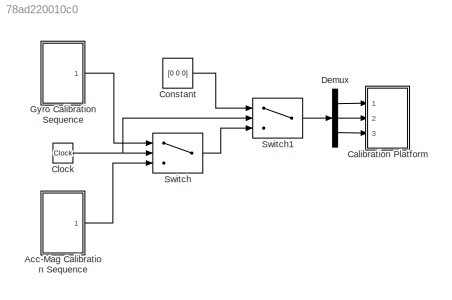
MODEL slx_78ad220010c0
KIND model
CONFIG AbsTol = auto
CONFIG FixedStep = auto
CONFIG MaxStep = auto
CONFIG MinStep = auto
CONFIG RelTol = 1e-3
CONFIG SampleTimeConstraint = Unconstrained
CONFIG Solver = FixedStepDiscrete
CONFIG SolverMode = Auto
CONFIG SolverName = FixedStepDiscrete
CONFIG StartTime = 0.0
CONFIG StopTime = 10.0
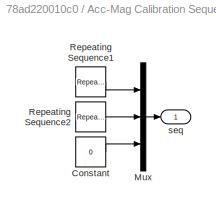
BLOCK [SubSystem] Acc-Mag Calibration Sequence
  Ports = [0, 1]
  RequestExecContextInheritance = off
BLOCK [Constant] Acc-Mag Calibration Sequence/Constant
  Value = 0
BLOCK [Mux] Acc-Mag Calibration Sequence/Mux
  DisplayOption = bar
  Inputs = 3
  Ports = [3, 1]
BLOCK [Reference] Acc-Mag Calibration Sequence/Repeating Sequence1  REF=simulink/Sources/Repeating
Sequence
  Ports = [0, 1]
  SourceBlock = simulink/Sources/Repeating\nSequence
  SourceType = Repeating table
  rep_seq_t = [0 1 2 3 4 5 6 7 8 9 10 11 12 13 14 15 16]
  rep_seq_y = [-90 -90 -45 -45 0 0 45 45 90 90 45 45 0 0 -45 -45 -90]
BLOCK [Reference] Acc-Mag Calibration Sequence/Repeating Sequence2  REF=simulink/Sources/Repeating
Sequence
  Ports = [0, 1]
  SourceBlock = simulink/Sources/Repeating\nSequence
  SourceType = Repeating table
  rep_seq_t = [0 7 8 (2*8-1) (2*8) (3*8-1) (3*8) (4*8-1) (4*8) (5*8-1) (5*8) (6*8-1) (6*8) (7*8-1) (7*8) (8*8-1) (8*8) (9*8)]
  rep_seq_y = [180 180 135 135 90 90 45 45 0 0 -45 -45 -90 -90 -135 -135 -180 -180]
BLOCK [Outport] Acc-Mag Calibration Sequence/seq
  IconDisplay = Port number
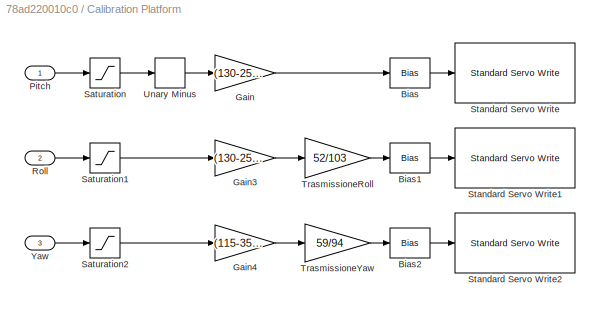
BLOCK [SubSystem] Calibration Platform
  Ports = [3]
  RequestExecContextInheritance = off
BLOCK [Bias] Calibration Platform/Bias
  Bias = 90
  SaturateOnIntegerOverflow = off
BLOCK [Bias] Calibration Platform/Bias1
  Bias = 89
  SaturateOnIntegerOverflow = off
BLOCK [Bias] Calibration Platform/Bias2
  Bias = 90
  SaturateOnIntegerOverflow = off
BLOCK [Gain] Calibration Platform/Gain
  Gain = (130-25)/180
  OutDataTypeStr = Inherit: Inherit via internal rule
  ParamDataTypeStr = Inherit: Inherit via internal rule
  SaturateOnIntegerOverflow = off
BLOCK [Gain] Calibration Platform/Gain3
  Gain = (130-25)/180
  OutDataTypeStr = Inherit: Inherit via internal rule
  ParamDataTypeStr = Inherit: Inherit via internal rule
  SaturateOnIntegerOverflow = off
BLOCK [Gain] Calibration Platform/Gain4
  Gain = (115-35)/180
  OutDataTypeStr = Inherit: Inherit via internal rule
  ParamDataTypeStr = Inherit: Inherit via internal rule
  SaturateOnIntegerOverflow = off
BLOCK [Inport] Calibration Platform/Pitch
  IconDisplay = Port number
BLOCK [Inport] Calibration Platform/Roll
  IconDisplay = Port number
  Port = 2
BLOCK [Saturate] Calibration Platform/Saturation
  InputPortMap = u0
  LowerLimit = -90
  Ports = [1, 1]
  UpperLimit = 90
BLOCK [Saturate] Calibration Platform/Saturation1
  InputPortMap = u0
  LowerLimit = -180
  Ports = [1, 1]
  UpperLimit = 180
BLOCK [Saturate] Calibration Platform/Saturation2
  InputPortMap = u0
  LowerLimit = -180
  Ports = [1, 1]
  UpperLimit = 180
BLOCK [Reference] Calibration Platform/Standard Servo Write  REF=arduinolib/Standard Servo Write
  Ports = [1]
  SourceBlock = arduinolib/Standard Servo Write
  SourceType = Arduino Standard Servo Write
  blockPlatform = arduino
  pinNumber = 9
BLOCK [Reference] Calibration Platform/Standard Servo Write1  REF=arduinolib/Standard Servo Write
  Ports = [1]
  SourceBlock = arduinolib/Standard Servo Write
  SourceType = Arduino Standard Servo Write
  blockPlatform = arduino
  pinNumber = 10
BLOCK [Reference] Calibration Platform/Standard Servo Write2  REF=arduinolib/Standard Servo Write
  Ports = [1]
  SourceBlock = arduinolib/Standard Servo Write
  SourceType = Arduino Standard Servo Write
  blockPlatform = arduino
  pinNumber = 11
BLOCK [Gain] Calibration Platform/TrasmissioneRoll
  Gain = 52/103
  OutDataTypeStr = Inherit: Inherit via internal rule
  ParamDataTypeStr = Inherit: Inherit via internal rule
  SaturateOnIntegerOverflow = off
BLOCK [Gain] Calibration Platform/TrasmissioneYaw
  Gain = 59/94
  OutDataTypeStr = Inherit: Inherit via internal rule
  ParamDataTypeStr = Inherit: Inherit via internal rule
  SaturateOnIntegerOverflow = off
BLOCK [UnaryMinus] Calibration Platform/Unary Minus
BLOCK [Inport] Calibration Platform/Yaw
  IconDisplay = Port number
  Port = 3
BLOCK [Clock] Clock
  Decimation = 1
BLOCK [Constant] Constant
  Value = [0 0 0]
BLOCK [Demux] Demux
  DisplayOption = bar
  Outputs = 3
  Ports = [1, 3]
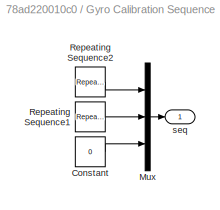
BLOCK [SubSystem] Gyro Calibration Sequence
  Ports = [0, 1]
  RequestExecContextInheritance = off
BLOCK [Constant] Gyro Calibration Sequence/Constant
  Value = 0
BLOCK [Mux] Gyro Calibration Sequence/Mux
  DisplayOption = bar
  Inputs = 3
  Ports = [3, 1]
BLOCK [Reference] Gyro Calibration Sequence/Repeating Sequence1  REF=simulink/Sources/Repeating
Sequence
  Ports = [0, 1]
  SourceBlock = simulink/Sources/Repeating\nSequence
  SourceType = Repeating table
  rep_seq_t = [0 73 75 80 82 84 85 87 89 90 91 93 94 96 97 100]
  rep_seq_y = [-180 -180 0 0 -90 -90 90 90 0 0 -90 -90 90 90 0 0]
BLOCK [Reference] Gyro Calibration Sequence/Repeating Sequence2  REF=simulink/Sources/Repeating
Sequence
  Ports = [0, 1]
  SourceBlock = simulink/Sources/Repeating\nSequence
  SourceType = Repeating table
  rep_seq_t = [0 76 77 78 79 90 91 96 97 100]
  rep_seq_y = [90 90 -90 -90 0 0 90 90 0 0]
BLOCK [Outport] Gyro Calibration Sequence/seq
  IconDisplay = Port number
BLOCK [Switch] Switch
  Criteria = u2 > Threshold
  InputSameDT = off
  SaturateOnIntegerOverflow = off
  Threshold = 72
BLOCK [Switch] Switch1
  Criteria = u2 > Threshold
  InputSameDT = off
  SaturateOnIntegerOverflow = off
  Threshold = 100
LINE Acc-Mag Calibration Sequence/Constant:1 -> Acc-Mag Calibration Sequence/Mux:3
LINE Acc-Mag Calibration Sequence/Mux:1 -> Acc-Mag Calibration Sequence/seq:1
LINE Acc-Mag Calibration Sequence/Repeating Sequence1:1 -> Acc-Mag Calibration Sequence/Mux:1
LINE Acc-Mag Calibration Sequence/Repeating Sequence2:1 -> Acc-Mag Calibration Sequence/Mux:2
LINE Acc-Mag Calibration Sequence:1 -> Switch:3
LINE Calibration Platform/Bias1:1 -> Calibration Platform/Standard Servo Write1:1
LINE Calibration Platform/Bias2:1 -> Calibration Platform/Standard Servo Write2:1
LINE Calibration Platform/Bias:1 -> Calibration Platform/Standard Servo Write:1
LINE Calibration Platform/Gain3:1 -> Calibration Platform/TrasmissioneRoll:1
LINE Calibration Platform/Gain4:1 -> Calibration Platform/TrasmissioneYaw:1
LINE Calibration Platform/Gain:1 -> Calibration Platform/Bias:1
LINE Calibration Platform/Pitch:1 -> Calibration Platform/Saturation:1
LINE Calibration Platform/Roll:1 -> Calibration Platform/Saturation1:1
LINE Calibration Platform/Saturation1:1 -> Calibration Platform/Gain3:1
LINE Calibration Platform/Saturation2:1 -> Calibration Platform/Gain4:1
LINE Calibration Platform/Saturation:1 -> Calibration Platform/Unary Minus:1
LINE Calibration Platform/TrasmissioneRoll:1 -> Calibration Platform/Bias1:1
LINE Calibration Platform/TrasmissioneYaw:1 -> Calibration Platform/Bias2:1
LINE Calibration Platform/Unary Minus:1 -> Calibration Platform/Gain:1
LINE Calibration Platform/Yaw:1 -> Calibration Platform/Saturation2:1
NET Clock:1 -> Switch1:2, Switch:2
LINE Constant:1 -> Switch1:1
LINE Demux:1 -> Calibration Platform:1
LINE Demux:2 -> Calibration Platform:2
LINE Demux:3 -> Calibration Platform:3
LINE Gyro Calibration Sequence/Constant:1 -> Gyro Calibration Sequence/Mux:3
LINE Gyro Calibration Sequence/Mux:1 -> Gyro Calibration Sequence/seq:1
LINE Gyro Calibration Sequence/Repeating Sequence1:1 -> Gyro Calibration Sequence/Mux:2
LINE Gyro Calibration Sequence/Repeating Sequence2:1 -> Gyro Calibration Sequence/Mux:1
LINE Gyro Calibration Sequence:1 -> Switch:1
LINE Switch1:1 -> Demux:1
LINE Switch:1 -> Switch1:3
note: NET lines group one-source signal fan-out (src -> all destinations, sorted); 1:1 wires keep LINE
